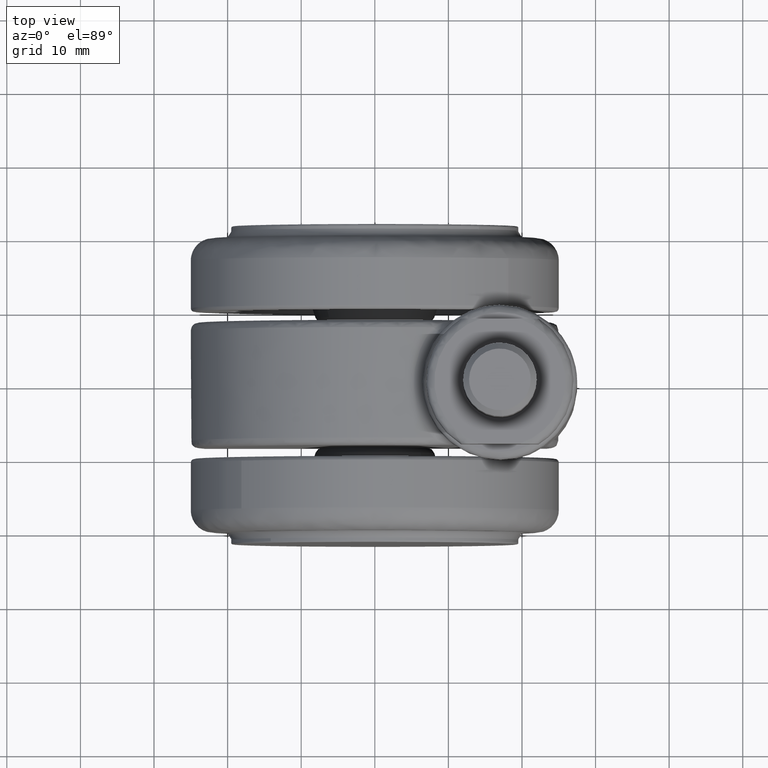
[diagram: clean part render]
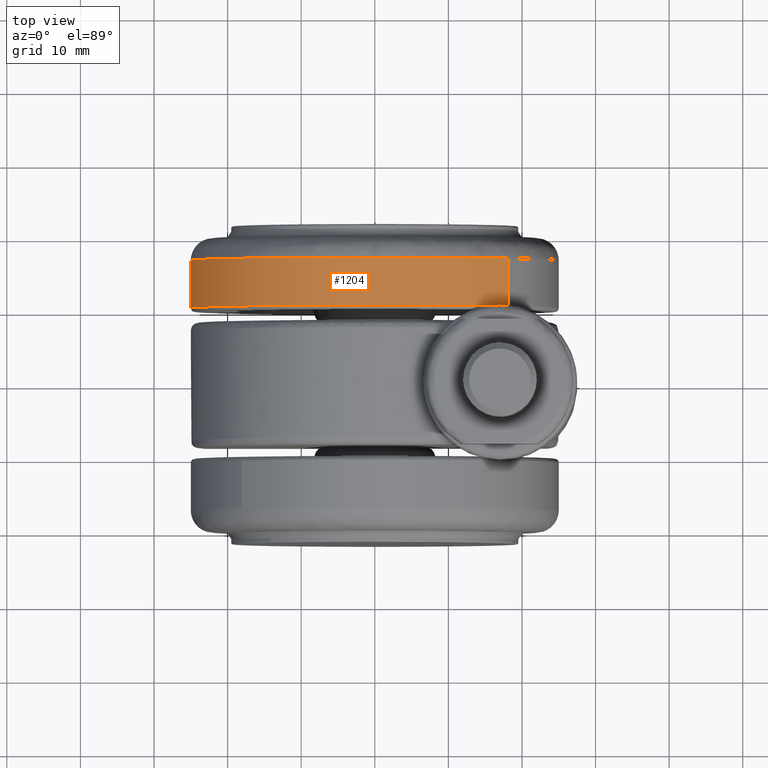
[diagram: same view with one face highlighted and labeled with its STEP entity id]
A machine part, top view. The second image highlights one B-rep face of the part: STEP entity #1204.
In plain terms, the highlighted face is a freeform B-spline surface patch.
Its self-contained STEP definition (entity closure, byte-faithful):
#891=CARTESIAN_POINT('',(-24.998026105095359,10.499999998055420,0.314150997086493));
#892=VERTEX_POINT('',#891);
#906=CARTESIAN_POINT('',(-18.134359921646951,10.499999999000540,-17.208863711243801));
#907=VERTEX_POINT('',#906);
#908=CARTESIAN_POINT('',(-24.998026105095359,10.499999998055420,0.314150997086493));
#909=CARTESIAN_POINT('',(-24.999999999999996,10.499999998061453,0.157081699798583));
#910=CARTESIAN_POINT('',(-24.999999999999989,10.499999998067560,-1.213620E-015));
#911=CARTESIAN_POINT('',(-24.999999999999986,10.499999998455467,-9.973988105134458));
#912=CARTESIAN_POINT('',(-18.134359921646954,10.499999999000524,-17.208863711243819));
#920=(BOUNDED_CURVE()B_SPLINE_CURVE(2,(#908,#909,#910,#911,#912),.UNSPECIFIED.,.F.,.U.)B_SPLINE_CURVE_WITH_KNOTS((3,2,3),(0.247784295921709,0.250000000000000,0.371049520990958),.UNSPECIFIED.)CURVE()GEOMETRIC_REPRESENTATION_ITEM()RATIONAL_B_SPLINE_CURVE((0.994854295643969,0.997404141202285,1.0,0.858181664644527,0.853699661789174))REPRESENTATION_ITEM(''));
#921=EDGE_CURVE('',#892,#907,#920,.T.);
#1002=CARTESIAN_POINT('',(18.134359921646951,10.499999999000540,17.208863711243801));
#1003=VERTEX_POINT('',#1002);
#1019=CARTESIAN_POINT('',(1.285837E-015,10.500000000000000,25.0));
#1020=VERTEX_POINT('',#1019);
#1021=CARTESIAN_POINT('',(18.134359921646965,10.499999999000520,17.208863711243819));
#1022=CARTESIAN_POINT('',(10.740848205312053,10.499999999587486,24.999999999999996));
#1023=CARTESIAN_POINT('',(1.285837E-015,10.500000000000000,25.0));
#1031=(BOUNDED_CURVE()B_SPLINE_CURVE(2,(#1021,#1022,#1023),.UNSPECIFIED.,.F.,.U.)B_SPLINE_CURVE_WITH_KNOTS((3,3),(0.871049520990958,1.0),.UNSPECIFIED.)CURVE()GEOMETRIC_REPRESENTATION_ITEM()RATIONAL_B_SPLINE_CURVE((0.853699661789174,0.848925116542021,1.0))REPRESENTATION_ITEM(''));
#1032=EDGE_CURVE('',#1003,#1020,#1031,.T.);
#1034=CARTESIAN_POINT('',(1.285837E-015,10.500000000000000,25.0));
#1035=CARTESIAN_POINT('',(-24.687798247680206,10.499999999027713,25.0));
#1036=CARTESIAN_POINT('',(-24.998026105095359,10.499999998055420,0.314150997086493));
#1044=(BOUNDED_CURVE()B_SPLINE_CURVE(2,(#1034,#1035,#1036),.UNSPECIFIED.,.F.,.U.)B_SPLINE_CURVE_WITH_KNOTS((3,3),(0.0,0.247784295921709),.UNSPECIFIED.)CURVE()GEOMETRIC_REPRESENTATION_ITEM()RATIONAL_B_SPLINE_CURVE((1.0,0.709702639984262,0.994854295643969))REPRESENTATION_ITEM(''));
#1045=EDGE_CURVE('',#1020,#892,#1044,.T.);
#1070=CARTESIAN_POINT('',(-18.134359913672391,17.000000000057248,-17.208863719647230));
#1071=VERTEX_POINT('',#1070);
#1072=CARTESIAN_POINT('',(-18.134359913672391,17.000000000057248,-17.208863719647230));
#1073=CARTESIAN_POINT('',(-18.134359921646951,10.499999999000540,-17.208863711243801));
#1074=QUASI_UNIFORM_CURVE('',1,(#1072,#1073),.UNSPECIFIED.,.F.,.U.);
#1075=EDGE_CURVE('',#1071,#907,#1074,.T.);
#1107=CARTESIAN_POINT('',(18.134359913672402,17.000000000057241,17.208863719647230));
#1108=VERTEX_POINT('',#1107);
#1124=CARTESIAN_POINT('',(18.134359913672402,17.000000000057241,17.208863719647230));
#1125=CARTESIAN_POINT('',(18.134359921646951,10.499999999000540,17.208863711243801));
#1126=QUASI_UNIFORM_CURVE('',1,(#1124,#1125),.UNSPECIFIED.,.F.,.U.);
#1127=EDGE_CURVE('',#1108,#1003,#1126,.T.);
#1134=CARTESIAN_POINT('',(18.134359275307190,17.162500000162758,17.208864392343848));
#1135=CARTESIAN_POINT('',(0.925494882963344,17.162500000162758,35.343223667651039));
#1136=CARTESIAN_POINT('',(-17.208864392343841,17.162500000162769,18.134359275307190));
#1137=CARTESIAN_POINT('',(-35.343223667651039,17.162500000162773,0.925494882963342));
#1138=CARTESIAN_POINT('',(-18.134359275307180,17.162500000162769,-17.208864392343848));
#1139=CARTESIAN_POINT('',(18.134359275307190,10.333437498002731,17.208864392343848));
#1140=CARTESIAN_POINT('',(0.925494882963343,10.333437498002734,35.343223667651039));
#1141=CARTESIAN_POINT('',(-17.208864392343848,10.333437498002739,18.134359275307190));
#1142=CARTESIAN_POINT('',(-35.343223667651039,10.333437498002738,0.925494882963342));
#1143=CARTESIAN_POINT('',(-18.134359275307190,10.333437498002739,-17.208864392343848));
#1151=(BOUNDED_SURFACE()B_SPLINE_SURFACE(2,1,((#1134,#1139),(#1135,#1140),(#1136,#1141),(#1137,#1142),(#1138,#1143)),.UNSPECIFIED.,.F.,.F.,.U.)B_SPLINE_SURFACE_WITH_KNOTS((3,2,3),(2,2),(0.0,41.421356237309503,82.842712474618992),(0.0,6.829062502160029),.UNSPECIFIED.)GEOMETRIC_REPRESENTATION_ITEM()RATIONAL_B_SPLINE_SURFACE(((1.0,1.0),(0.707106781186548,0.707106781186548),(1.0,1.0),(0.707106781186548,0.707106781186548),(1.0,1.0)))REPRESENTATION_ITEM('')SURFACE());
#1152=ORIENTED_EDGE('',*,*,#921,.F.);
#1153=ORIENTED_EDGE('',*,*,#1045,.F.);
#1154=ORIENTED_EDGE('',*,*,#1032,.F.);
#1155=ORIENTED_EDGE('',*,*,#1127,.F.);
#1156=CARTESIAN_POINT('',(2.081831E-015,17.0,25.0));
#1157=VERTEX_POINT('',#1156);
#1158=CARTESIAN_POINT('',(18.134359913672405,17.000000000057241,17.208863719647240));
#1159=CARTESIAN_POINT('',(10.740848198450367,17.000000000023629,24.999999999999989));
#1160=CARTESIAN_POINT('',(2.081831E-015,17.0,25.0));
#1168=(BOUNDED_CURVE()B_SPLINE_CURVE(2,(#1158,#1159,#1160),.UNSPECIFIED.,.F.,.U.)B_SPLINE_CURVE_WITH_KNOTS((3,3),(0.871049521060892,1.0),.UNSPECIFIED.)CURVE()GEOMETRIC_REPRESENTATION_ITEM()RATIONAL_B_SPLINE_CURVE((0.853699661783996,0.848925116623953,1.0))REPRESENTATION_ITEM(''));
#1169=EDGE_CURVE('',#1108,#1157,#1168,.T.);
#1170=ORIENTED_EDGE('',*,*,#1169,.T.);
#1171=CARTESIAN_POINT('',(-24.998026105095359,17.000000000111370,0.314150997086522));
#1172=VERTEX_POINT('',#1171);
#1173=CARTESIAN_POINT('',(2.081831E-015,17.0,25.0));
#1174=CARTESIAN_POINT('',(-24.687798247680188,17.000000000055689,25.000000000000004));
#1175=CARTESIAN_POINT('',(-24.998026105095356,17.000000000111367,0.314150997086522));
#1183=(BOUNDED_CURVE()B_SPLINE_CURVE(2,(#1173,#1174,#1175),.UNSPECIFIED.,.F.,.U.)B_SPLINE_CURVE_WITH_KNOTS((3,3),(0.0,0.247784295921709),.UNSPECIFIED.)CURVE()GEOMETRIC_REPRESENTATION_ITEM()RATIONAL_B_SPLINE_CURVE((1.0,0.709702639984262,0.994854295643969))REPRESENTATION_ITEM(''));
#1184=EDGE_CURVE('',#1157,#1172,#1183,.T.);
#1185=ORIENTED_EDGE('',*,*,#1184,.T.);
#1186=CARTESIAN_POINT('',(-24.998026105095359,17.000000000111370,0.314150997086522));
#1187=CARTESIAN_POINT('',(-24.999999999999989,17.000000000111029,0.157081699798598));
#1188=CARTESIAN_POINT('',(-24.999999999999989,17.000000000110671,5.516454E-016));
#1189=CARTESIAN_POINT('',(-24.999999999999989,17.000000000088459,-9.973988111848918));
#1190=CARTESIAN_POINT('',(-18.134359913672395,17.000000000057241,-17.208863719647240));
#1198=(BOUNDED_CURVE()B_SPLINE_CURVE(2,(#1186,#1187,#1188,#1189,#1190),.UNSPECIFIED.,.F.,.U.)B_SPLINE_CURVE_WITH_KNOTS((3,2,3),(0.247784295921709,0.250000000000000,0.371049521060892),.UNSPECIFIED.)CURVE()GEOMETRIC_REPRESENTATION_ITEM()RATIONAL_B_SPLINE_CURVE((0.994854295643968,0.997404141202285,1.0,0.858181664562594,0.853699661783996))REPRESENTATION_ITEM(''));
#1199=EDGE_CURVE('',#1172,#1071,#1198,.T.);
#1200=ORIENTED_EDGE('',*,*,#1199,.T.);
#1201=ORIENTED_EDGE('',*,*,#1075,.T.);
#1202=EDGE_LOOP('',(#1152,#1153,#1154,#1155,#1170,#1185,#1200,#1201));
#1203=FACE_OUTER_BOUND('',#1202,.T.);
#1204=ADVANCED_FACE('',(#1203),#1151,.T.);